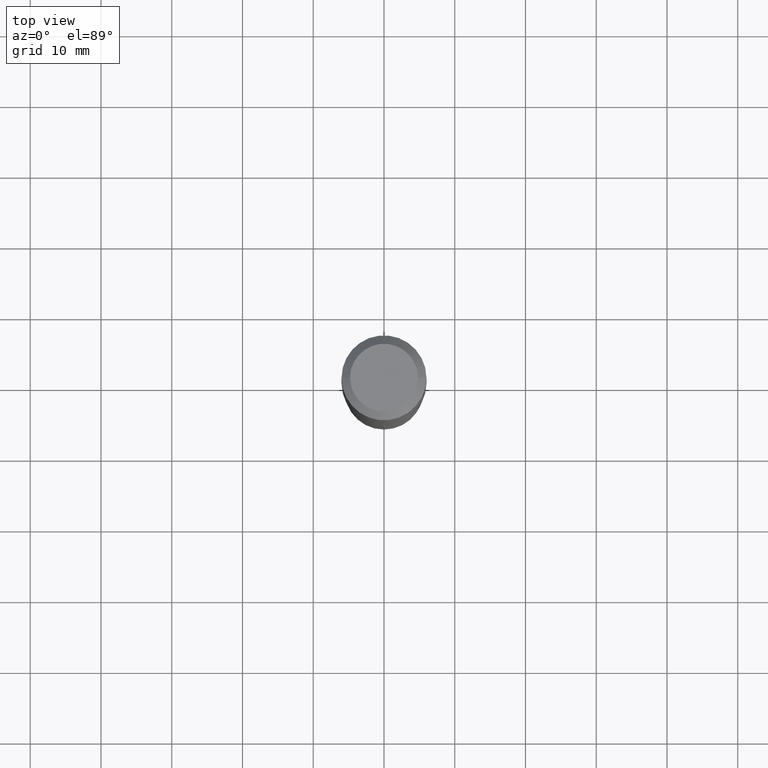
[diagram: clean part render]
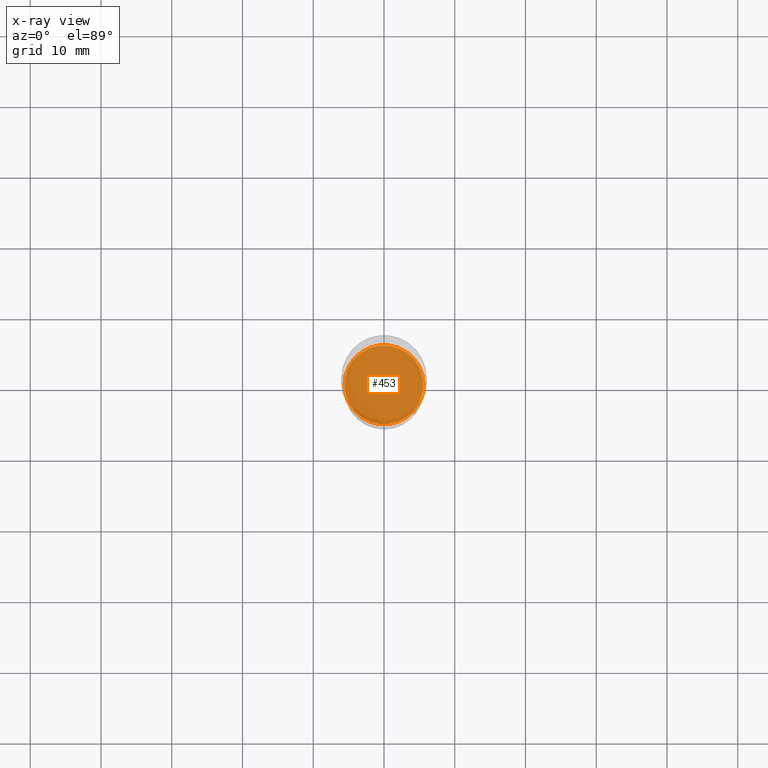
[diagram: x-ray — body ghosted, one internal face saturated and labeled with its STEP entity id]
A machine part, top view, then the same camera in x-ray: the body is ghosted and one INTERNAL B-rep face — a face not visible from any outside direction — is saturated and labeled: STEP entity #453.
In plain terms, the highlighted planar face has unit normal (-0, 0, 1).
Its self-contained STEP definition (entity closure, byte-faithful):
#12 = CARTESIAN_POINT ( 'NONE',  ( 5.603058128731384454E-29, -7.999682043557415076E-15, -2.291200000000000347 ) ) ;
#64 = ORIENTED_EDGE ( 'NONE', *, *, #256, .F. ) ;
#90 = EDGE_CURVE ( 'NONE', #238, #412, #378, .T. ) ;
#130 = DIRECTION ( 'NONE',  ( 1.000000000000000000, -6.982962677686265922E-15, 4.876176775795935793E-29 ) ) ;
#132 = AXIS2_PLACEMENT_3D ( 'NONE', #319, #471, #280 ) ;
#156 = FACE_OUTER_BOUND ( 'NONE', #443, .T. ) ;
#187 = DIRECTION ( 'NONE',  ( -2.445468806185136597E-29, 3.491481338843145583E-15, 1.000000000000000000 ) ) ;
#188 = CARTESIAN_POINT ( 'NONE',  ( 5.603058128731384454E-29, -7.999682043557415076E-15, -2.291200000000000347 ) ) ;
#238 = VERTEX_POINT ( 'NONE', #343 ) ;
#256 = EDGE_CURVE ( 'NONE', #412, #238, #331, .T. ) ;
#280 = DIRECTION ( 'NONE',  ( 1.000000000000000000, -6.982962677686265133E-15, 0.000000000000000000 ) ) ;
#295 = DIRECTION ( 'NONE',  ( 1.000000000000000000, -6.982962677686265133E-15, 0.000000000000000000 ) ) ;
#313 = DIRECTION ( 'NONE',  ( -2.438088387897960049E-29, 3.491481338843145188E-15, 1.000000000000000000 ) ) ;
#319 = CARTESIAN_POINT ( 'NONE',  ( 5.603058128731384454E-29, -7.999682043557415076E-15, -2.291200000000000347 ) ) ;
#331 = CIRCLE ( 'NONE', #395, 0.2199500000000000066 ) ;
#343 = CARTESIAN_POINT ( 'NONE',  ( 0.2199500000000000066, -9.535584684514509925E-15, -2.291200000000000347 ) ) ;
#346 = ORIENTED_EDGE ( 'NONE', *, *, #90, .F. ) ;
#352 = PLANE ( 'NONE',  #365 ) ;
#365 = AXIS2_PLACEMENT_3D ( 'NONE', #12, #313, #130 ) ;
#378 = CIRCLE ( 'NONE', #132, 0.2199500000000000066 ) ;
#380 = CARTESIAN_POINT ( 'NONE',  ( -0.2199500000000000066, -6.434194069078964455E-15, -2.291200000000000347 ) ) ;
#395 = AXIS2_PLACEMENT_3D ( 'NONE', #188, #187, #295 ) ;
#412 = VERTEX_POINT ( 'NONE', #380 ) ;
#443 = EDGE_LOOP ( 'NONE', ( #346, #64 ) ) ;
#453 = ADVANCED_FACE ( 'NONE', ( #156 ), #352, .F. ) ;
#471 = DIRECTION ( 'NONE',  ( -2.445468806185136597E-29, 3.491481338843145583E-15, 1.000000000000000000 ) ) ;